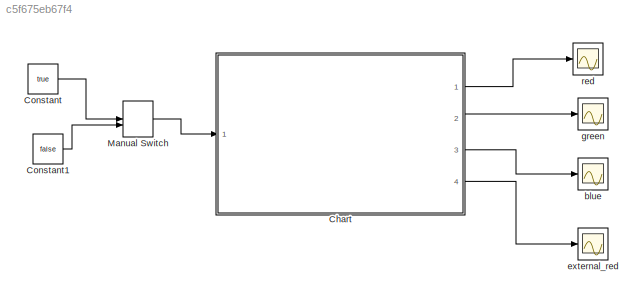
MODEL slx_c5f675eb67f4
KIND model
CONFIG AbsTol = auto
CONFIG FixedStep = auto
CONFIG MaxStep = auto
CONFIG MinStep = auto
CONFIG RelTol = 1e-3
CONFIG SampleTimeConstraint = Unconstrained
CONFIG Solver = ode45
CONFIG SolverMode = Auto
CONFIG SolverName = ode45
CONFIG StartTime = 0.0
CONFIG StopTime = 10.0
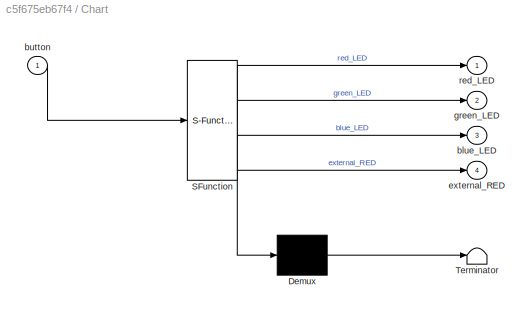
BLOCK [SubSystem] Chart
  ErrorFcn = Stateflow.Translate.translate
  PermitHierarchicalResolution = ExplicitOnly
  Ports = [1, 4]
  RequestExecContextInheritance = off
  SFBlockType = Chart
  TreatAsAtomicUnit = on
BLOCK [Demux] Chart/ Demux 
  Outputs = 1
  Ports = [1, 1]
BLOCK [S-Function] Chart/ SFunction 
  EnableBusSupport = on
  FunctionName = sf_sfun
  PortCounts = [1 5]
  Ports = [1, 5]
  Tag = Stateflow S-Function lab4_buttonCheck 3
BLOCK [Terminator] Chart/ Terminator 
BLOCK [Outport] Chart/blue_LED
  IconDisplay = Port number
  Port = 3
BLOCK [Inport] Chart/button
  IconDisplay = Port number
BLOCK [Outport] Chart/external_RED
  IconDisplay = Port number
  Port = 4
BLOCK [Outport] Chart/green_LED
  IconDisplay = Port number
  Port = 2
BLOCK [Outport] Chart/red_LED
  IconDisplay = Port number
BLOCK [Constant] Constant
  Value = true
BLOCK [Constant] Constant1
  Value = false
BLOCK [ManualSwitch] Manual Switch
BLOCK [Scope] blue
  Floating = off
  NumInputPorts = 1
  Ports = [1]
  SaveName = ScopeData2
BLOCK [Scope] external_red
  Floating = off
  NumInputPorts = 1
  Ports = [1]
  SaveName = ScopeData3
BLOCK [Scope] green
  Floating = off
  NumInputPorts = 1
  Ports = [1]
  SaveName = ScopeData1
BLOCK [Scope] red
  Floating = off
  NumInputPorts = 1
  Ports = [1]
LINE Chart:1 -> red:1
LINE Chart:2 -> green:1
LINE Chart:3 -> blue:1
LINE Chart:4 -> external_red:1
LINE Constant1:1 -> Manual Switch:2
LINE Constant:1 -> Manual Switch:1
LINE Manual Switch:1 -> Chart:1
CHART Chart states=2 transitions=3
  STATE_LABEL 'LedOff\nentry: external_RED=false;\n red_LED=false;\n green_LED=false;\n blue_LED=false'
  STATE_LABEL 'LedOn\nentry: external_RED=true;\n red_LED=true;\n green_LED=true;\n blue_LED=true'
